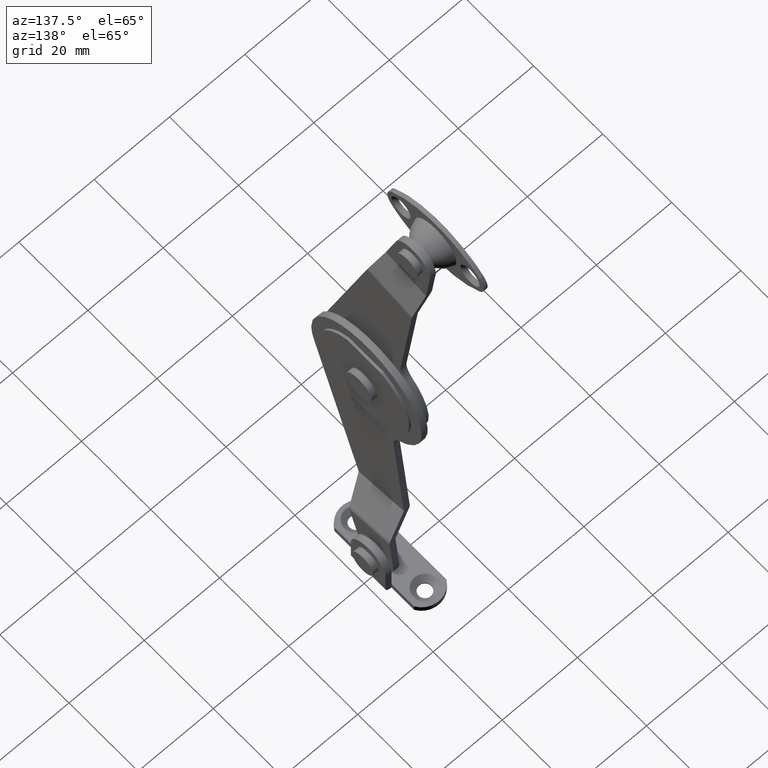
[diagram: clean part render]
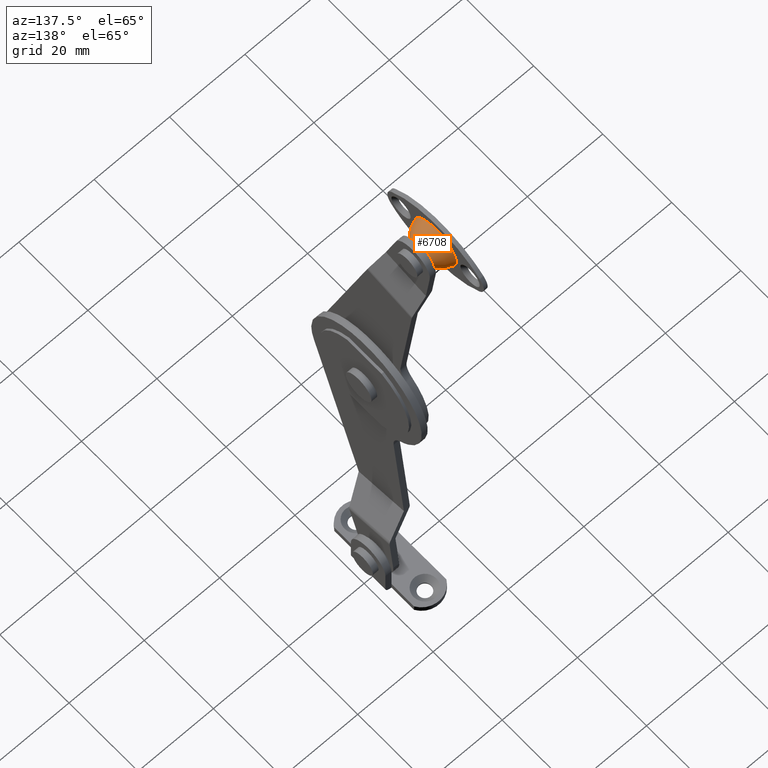
[diagram: same view with one face highlighted and labeled with its STEP entity id]
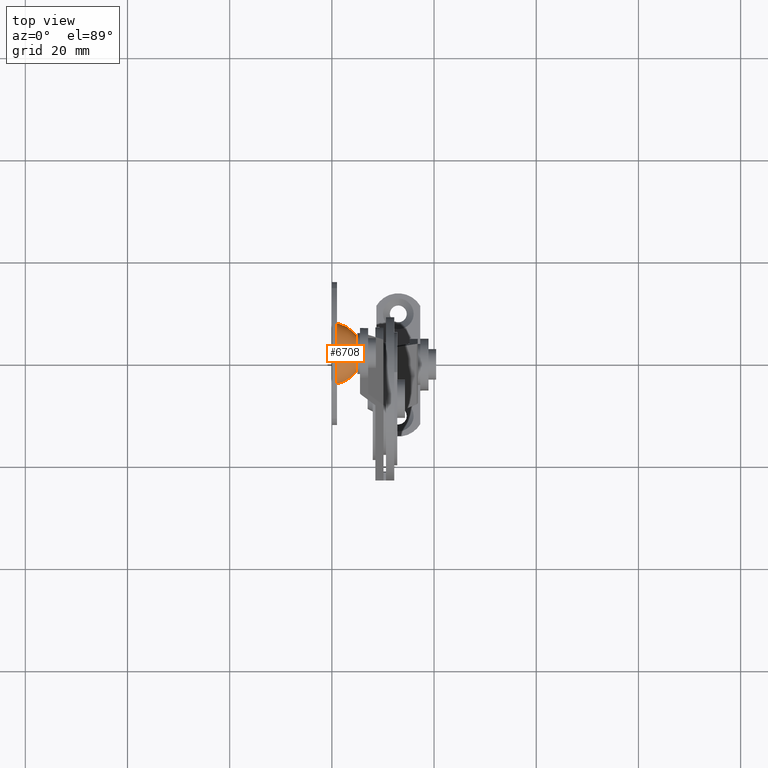
[diagram: same view with one face highlighted and labeled with its STEP entity id]
A machine part, auxiliary view. The second image highlights one B-rep face of the part: STEP entity #6708.
A second angle (top view) of the same face is appended — the face is thin or edge-on in the first view.
In plain terms, the highlighted face is a freeform B-spline surface patch.
Its self-contained STEP definition (entity closure, byte-faithful):
#6372=CARTESIAN_POINT('',(4.802926985902935,2.039199545274685,63.382197546241343));
#6373=VERTEX_POINT('',#6372);
#6387=CARTESIAN_POINT('',(4.802926776274671,1.491440E-030,64.030636672741593));
#6388=VERTEX_POINT('',#6387);
#6389=CARTESIAN_POINT('',(4.802926985902935,2.039199545274685,63.382197546241343));
#6390=CARTESIAN_POINT('',(4.802926776274671,1.122697609528779,64.030636672741593));
#6391=CARTESIAN_POINT('',(4.802926776274671,1.491440E-030,64.030636672741593));
#6399=(BOUNDED_CURVE()B_SPLINE_CURVE(2,(#6389,#6390,#6391),.UNSPECIFIED.,.F.,.U.)B_SPLINE_CURVE_WITH_KNOTS((3,3),(0.900659157614049,1.0),.UNSPECIFIED.)CURVE()GEOMETRIC_REPRESENTATION_ITEM()RATIONAL_B_SPLINE_CURVE((0.859724227723966,0.883614963655756,1.0))REPRESENTATION_ITEM(''));
#6400=EDGE_CURVE('',#6373,#6388,#6399,.T.);
#6402=CARTESIAN_POINT('',(4.802926911004859,-3.507022598747598,60.907662254111941));
#6403=VERTEX_POINT('',#6402);
#6404=CARTESIAN_POINT('',(4.802926776274671,1.491440E-030,64.030636672741593));
#6405=CARTESIAN_POINT('',(4.802926776274672,-3.144002655522089,64.030636672741579));
#6406=CARTESIAN_POINT('',(4.802926911004859,-3.507022598747597,60.907662254111933));
#6414=(BOUNDED_CURVE()B_SPLINE_CURVE(2,(#6404,#6405,#6406),.UNSPECIFIED.,.F.,.U.)B_SPLINE_CURVE_WITH_KNOTS((3,3),(0.0,0.229999999989869),.UNSPECIFIED.)CURVE()GEOMETRIC_REPRESENTATION_ITEM()RATIONAL_B_SPLINE_CURVE((1.0,0.730538238703492,0.956886118170720))REPRESENTATION_ITEM(''));
#6415=EDGE_CURVE('',#6388,#6403,#6414,.T.);
#6417=CARTESIAN_POINT('',(4.802932114481397,1.063760E-030,56.969370236376108));
#6418=VERTEX_POINT('',#6417);
#6434=CARTESIAN_POINT('',(4.802930382996895,2.882194360236429,58.460802709180747));
#6435=VERTEX_POINT('',#6434);
#6436=CARTESIAN_POINT('',(4.802932114481397,1.063760E-030,56.969370236376108));
#6437=CARTESIAN_POINT('',(4.802932114481396,1.826979410066506,56.969370236376108));
#6438=CARTESIAN_POINT('',(4.802930382996895,2.882194360236429,58.460802709180747));
#6446=(BOUNDED_CURVE()B_SPLINE_CURVE(2,(#6436,#6437,#6438),.UNSPECIFIED.,.F.,.U.)B_SPLINE_CURVE_WITH_KNOTS((3,3),(0.500000000000000,0.650658981903098),.UNSPECIFIED.)CURVE()GEOMETRIC_REPRESENTATION_ITEM()RATIONAL_B_SPLINE_CURVE((1.0,0.823492023388976,0.859724143209893))REPRESENTATION_ITEM(''));
#6447=EDGE_CURVE('',#6418,#6435,#6446,.T.);
#6498=CARTESIAN_POINT('',(4.802930382996895,2.882194360236429,58.460802709180747));
#6499=CARTESIAN_POINT('',(4.802930294120695,3.530636672741600,59.377304696187515));
#6500=CARTESIAN_POINT('',(4.802929445378034,3.530636672741600,60.500003454558851));
#6501=CARTESIAN_POINT('',(4.802928064209637,3.530636672741600,62.326983664497938));
#6502=CARTESIAN_POINT('',(4.802926985902936,2.039199545274685,63.382197546241343));
#6510=(BOUNDED_CURVE()B_SPLINE_CURVE(2,(#6498,#6499,#6500,#6501,#6502),.UNSPECIFIED.,.F.,.U.)B_SPLINE_CURVE_WITH_KNOTS((3,2,3),(0.650658981903098,0.750000000000000,0.900659157614049),.UNSPECIFIED.)CURVE()GEOMETRIC_REPRESENTATION_ITEM()RATIONAL_B_SPLINE_CURVE((0.859724143209893,0.883614757797572,1.0,0.823491817530791,0.859724227723966))REPRESENTATION_ITEM(''));
#6511=EDGE_CURVE('',#6435,#6373,#6510,.T.);
#6613=CARTESIAN_POINT('',(0.786390714030765,-6.003510634464964,61.197858642687265));
#6614=CARTESIAN_POINT('',(3.419882448920064,-5.511078217338261,61.140617431810007));
#6615=CARTESIAN_POINT('',(4.938838130257435,-3.318171280343532,60.885710069806628));
#6616=CARTESIAN_POINT('',(0.786390714030765,-5.382073344482290,66.543934697141211));
#6617=CARTESIAN_POINT('',(3.419882448920063,-4.940613747332294,66.048186533594475));
#6618=CARTESIAN_POINT('',(4.938838130257436,-2.974699686187059,63.840513868201569));
#6619=CARTESIAN_POINT('',(0.786390714030765,1.491440E-030,66.543934697141196));
#6620=CARTESIAN_POINT('',(3.419882448920065,1.491440E-030,66.048186533594460));
#6621=CARTESIAN_POINT('',(4.938838130257434,1.491440E-030,63.840513868201555));
#6622=CARTESIAN_POINT('',(0.786390714030765,6.043934697141193,66.543934697141211));
#6623=CARTESIAN_POINT('',(3.419882448920064,5.548186533594476,66.048186533594475));
#6624=CARTESIAN_POINT('',(4.938838130257435,3.340513868201548,63.840513868201555));
#6625=CARTESIAN_POINT('',(0.786390714030765,6.043934697141194,60.500000000000000));
#6626=CARTESIAN_POINT('',(3.419882448920065,5.548186533594477,60.500000000000000));
#6627=CARTESIAN_POINT('',(4.938838130257434,3.340513868201549,60.499999999999993));
#6628=CARTESIAN_POINT('',(0.786390714030765,6.043934697141193,54.456065302858811));
#6629=CARTESIAN_POINT('',(3.419882448920064,5.548186533594476,54.951813466405525));
#6630=CARTESIAN_POINT('',(4.938838130257435,3.340513868201548,57.159486131798474));
#6631=CARTESIAN_POINT('',(0.786390714030765,1.491440E-030,54.456065302858804));
#6632=CARTESIAN_POINT('',(3.419882448920065,1.491440E-030,54.951813466405518));
#6633=CARTESIAN_POINT('',(4.938838130257434,1.491440E-030,57.159486131798445));
#6641=(BOUNDED_SURFACE()B_SPLINE_SURFACE(2,2,((#6613,#6616,#6619,#6622,#6625,#6628,#6631),(#6614,#6617,#6620,#6623,#6626,#6629,#6632),(#6615,#6618,#6621,#6624,#6627,#6630,#6633)),.UNSPECIFIED.,.F.,.F.,.U.)B_SPLINE_SURFACE_WITH_KNOTS((3,3),(3,2,2,3),(0.0,5.147532126498968),(0.0,9.212804945933037,19.226723832545879,29.240642719158721),.UNSPECIFIED.)GEOMETRIC_REPRESENTATION_ITEM()RATIONAL_B_SPLINE_SURFACE(((0.897205465135135,0.684974850743763,0.937630369883012,0.663004792790729,0.937630369883012,0.663004792790729,0.937630369883012),(0.800057577086988,0.610806934138586,0.836105341621824,0.591215756847086,0.836105341621824,0.591215756847086,0.836105341621824),(0.834687006780730,0.637244901089935,0.872295050929591,0.616805745707779,0.872295050929591,0.616805745707779,0.872295050929591)))REPRESENTATION_ITEM('')SURFACE());
#6642=ORIENTED_EDGE('',*,*,#6415,.F.);
#6643=ORIENTED_EDGE('',*,*,#6400,.F.);
#6644=ORIENTED_EDGE('',*,*,#6511,.F.);
#6645=ORIENTED_EDGE('',*,*,#6447,.F.);
#6646=CARTESIAN_POINT('',(1.000000000169250,7.646330E-031,54.499999362795187));
#6647=VERTEX_POINT('',#6646);
#6648=CARTESIAN_POINT('',(1.000000000169250,7.646330E-031,54.499999362795187));
#6649=CARTESIAN_POINT('',(3.360974488884948,1.655073E-031,55.027023026519664));
#6650=CARTESIAN_POINT('',(4.802932114481397,1.063760E-030,56.969370236376115));
#6658=(BOUNDED_CURVE()B_SPLINE_CURVE(2,(#6648,#6649,#6650),.UNSPECIFIED.,.F.,.U.)B_SPLINE_CURVE_WITH_KNOTS((3,3),(0.576735662941524,0.804442367995491),.UNSPECIFIED.)CURVE()GEOMETRIC_REPRESENTATION_ITEM()RATIONAL_B_SPLINE_CURVE((0.928693194637076,0.842075413762764,0.869292076934023))REPRESENTATION_ITEM(''));
#6659=EDGE_CURVE('',#6647,#6418,#6658,.T.);
#6660=ORIENTED_EDGE('',*,*,#6659,.F.);
#6661=CARTESIAN_POINT('',(0.999999999999988,1.491440E-030,66.500000637242593));
#6662=VERTEX_POINT('',#6661);
#6663=CARTESIAN_POINT('',(1.000000000169250,7.646330E-031,54.499999362795187));
#6664=CARTESIAN_POINT('',(0.999999999999988,6.000000637242600,54.499999362757414));
#6665=CARTESIAN_POINT('',(0.999999999999988,6.000000637242600,60.500000000000000));
#6666=CARTESIAN_POINT('',(0.999999999999988,6.000000637242600,66.500000637242593));
#6667=CARTESIAN_POINT('',(0.999999999999988,1.491440E-030,66.500000637242593));
#6675=(BOUNDED_CURVE()B_SPLINE_CURVE(2,(#6663,#6664,#6665,#6666,#6667),.UNSPECIFIED.,.F.,.U.)B_SPLINE_CURVE_WITH_KNOTS((3,2,3),(0.500000000000000,0.750000000000000,1.0),.UNSPECIFIED.)CURVE()GEOMETRIC_REPRESENTATION_ITEM()RATIONAL_B_SPLINE_CURVE((1.0,0.707106781186547,1.0,0.707106781186547,1.0))REPRESENTATION_ITEM(''));
#6676=EDGE_CURVE('',#6647,#6662,#6675,.T.);
#6677=ORIENTED_EDGE('',*,*,#6676,.T.);
#6678=CARTESIAN_POINT('',(0.999999999962263,-5.959870465671692,61.192785449780018));
#6679=VERTEX_POINT('',#6678);
#6680=CARTESIAN_POINT('',(0.999999999999988,1.491440E-030,66.500000637242593));
#6681=CARTESIAN_POINT('',(0.999999999999988,-5.342950771991530,66.500000637242593));
#6682=CARTESIAN_POINT('',(0.999999999962263,-5.959870465671692,61.192785449780018));
#6690=(BOUNDED_CURVE()B_SPLINE_CURVE(2,(#6680,#6681,#6682),.UNSPECIFIED.,.F.,.U.)B_SPLINE_CURVE_WITH_KNOTS((3,3),(0.0,0.229999999986497),.UNSPECIFIED.)CURVE()GEOMETRIC_REPRESENTATION_ITEM()RATIONAL_B_SPLINE_CURVE((1.0,0.730538238707443,0.956886118164083))REPRESENTATION_ITEM(''));
#6691=EDGE_CURVE('',#6662,#6679,#6690,.T.);
#6692=ORIENTED_EDGE('',*,*,#6691,.T.);
#6693=CARTESIAN_POINT('',(0.999999999962263,-5.959870465671692,61.192785449780018));
#6694=CARTESIAN_POINT('',(3.360969638756385,-5.436372802140161,61.131933193394907));
#6695=CARTESIAN_POINT('',(4.802926911004859,-3.507022598747597,60.907662254111941));
#6703=(BOUNDED_CURVE()B_SPLINE_CURVE(2,(#6693,#6694,#6695),.UNSPECIFIED.,.F.,.U.)B_SPLINE_CURVE_WITH_KNOTS((3,3),(0.576735662919508,0.804441943860899),.UNSPECIFIED.)CURVE()GEOMETRIC_REPRESENTATION_ITEM()RATIONAL_B_SPLINE_CURVE((0.888653626022383,0.805770428278200,0.831813424053518))REPRESENTATION_ITEM(''));
#6704=EDGE_CURVE('',#6679,#6403,#6703,.T.);
#6705=ORIENTED_EDGE('',*,*,#6704,.T.);
#6706=EDGE_LOOP('',(#6642,#6643,#6644,#6645,#6660,#6677,#6692,#6705));
#6707=FACE_OUTER_BOUND('',#6706,.T.);
#6708=ADVANCED_FACE('',(#6707),#6641,.T.);